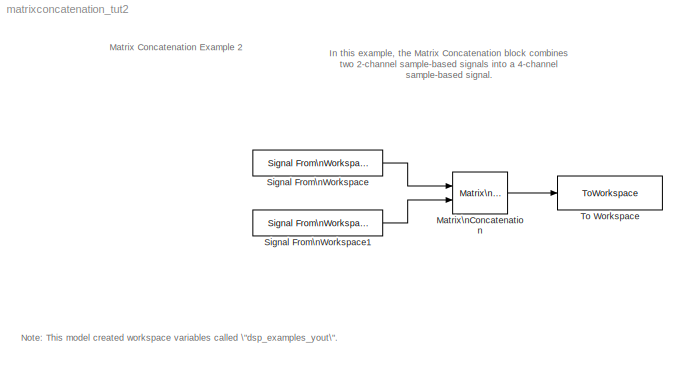
MODEL matrixconcatenation_tut2
KIND model
CONFIG AbsTol = auto
CONFIG FixedStep = auto
CONFIG MaxStep = auto
CONFIG MinStep = auto
CONFIG PostLoadFcn = set_param(gcs,'SimulationCommand','Update')
CONFIG PreLoadFcn = dsp_examples_A = [1:10;1 1 0 0 1 1 0 0 1 1]';
CONFIG RelTol = 1e-3
CONFIG Solver = FixedStepDiscrete
CONFIG SolverMode = Auto
CONFIG StartTime = 0.0
CONFIG StopTime = 10.0
BLOCK [Reference] Matrix\nConcatenation  REF=simulink3/Signals\n& Systems/Matrix\nConcatenation
  Ports = [2, 1]
  SourceBlock = simulink3/Signals\n& Systems/Matrix\nConcatenation
  SourceType = Matrix Concatenation
  catMethod = Vertical
  numInports = 2
BLOCK [Reference] Signal From\nWorkspace  REF=dspsrcs3/Signal From\nWorkspace
  OutputAfterFinalValue = Setting To Zero
  Ports = [0, 1]
  SourceBlock = dspsrcs3/Signal From\nWorkspace
  SourceType = Signal From Workspace
  Ts = 1
  X = [1:10;-1:-1:-10]'
  nsamps = 1
BLOCK [Reference] Signal From\nWorkspace1  REF=dspsrcs3/Signal From\nWorkspace
  OutputAfterFinalValue = Setting To Zero
  Ports = [0, 1]
  SourceBlock = dspsrcs3/Signal From\nWorkspace
  SourceType = Signal From Workspace
  Ts = 1
  X = [zeros(10,1) 5*ones(10,1)]
  nsamps = 1
BLOCK [ToWorkspace] To Workspace
  Decimation = 1
  MaxDataPoints = inf
  SampleTime = -1
  SaveFormat = Array
  VariableName = dsp_examples_yout
LINE Matrix\nConcatenation:1 -> To Workspace:1
LINE Signal From\nWorkspace1:1 -> Matrix\nConcatenation:2
LINE Signal From\nWorkspace:1 -> Matrix\nConcatenation:1
